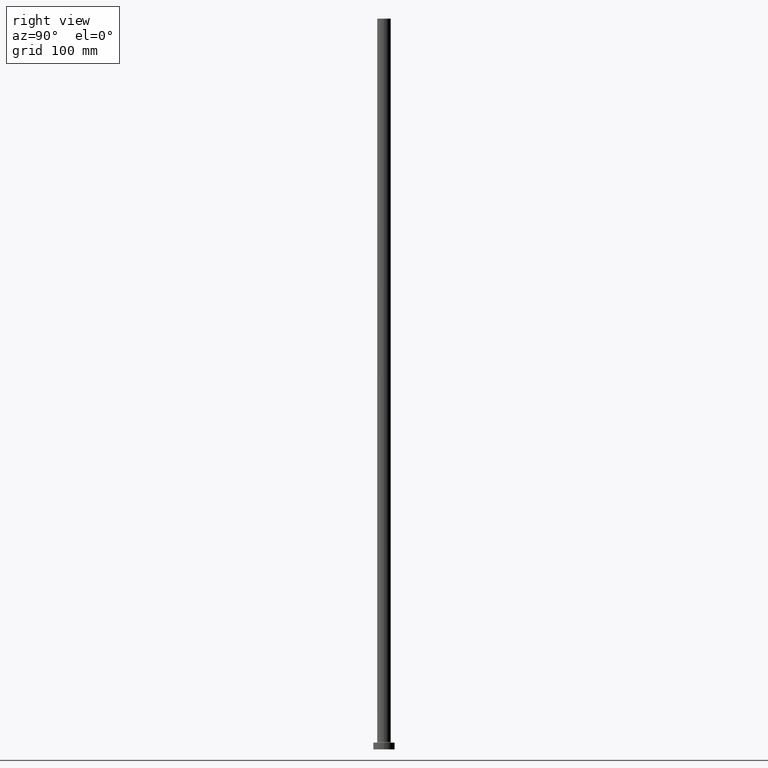
[diagram: clean part render]
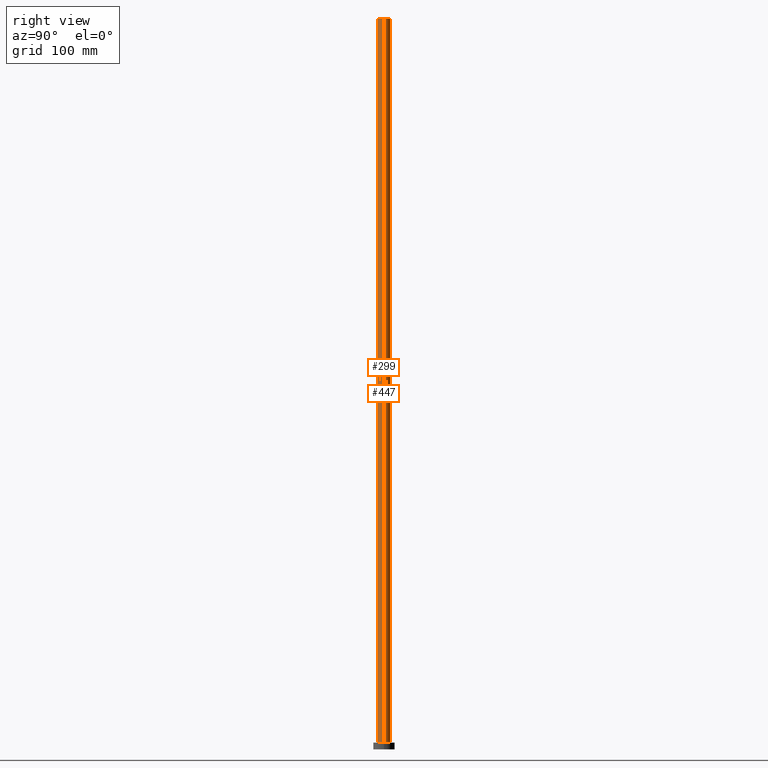
[diagram: same view with one multi-face feature highlighted, each face labeled with its STEP entity id]
A machine part, right view. The highlighted faces form ONE feature: a constant-radius fillet chain: 2 tangent blend faces with common blend radius 7 mm. The faces share edges in the B-rep.
Their STEP definitions:
[1] entity #447 (Cylinder):
#21 = ORIENTED_EDGE ( 'NONE', *, *, #398, .T. ) ;
#26 = VECTOR ( 'NONE', #310, 1000.000000000000000 ) ;
#32 = LINE ( 'NONE', #233, #26 ) ;
#56 = VERTEX_POINT ( 'NONE', #185 ) ;
#69 = CYLINDRICAL_SURFACE ( 'NONE', #399, 7.000000000000000888 ) ;
#104 = CARTESIAN_POINT ( 'NONE',  ( -7.000000000000000888, 0.000000000000000000, 750.0000000000000000 ) ) ;
#110 = FACE_OUTER_BOUND ( 'NONE', #147, .T. ) ;
#127 = CIRCLE ( 'NONE', #217, 7.000000000000000888 ) ;
#147 = EDGE_LOOP ( 'NONE', ( #431, #230, #21, #377 ) ) ;
#185 = CARTESIAN_POINT ( 'NONE',  ( -7.000000000000000888, 0.000000000000000000, 7.700000000000040146 ) ) ;
#201 = CARTESIAN_POINT ( 'NONE',  ( 7.000000000000000888, 8.572527594031472204E-16, 7.700000000000040146 ) ) ;
#204 = DIRECTION ( 'NONE',  ( 0.000000000000000000, 0.000000000000000000, 1.000000000000000000 ) ) ;
#213 = DIRECTION ( 'NONE',  ( -1.000000000000000000, 0.000000000000000000, 0.000000000000000000 ) ) ;
#217 = AXIS2_PLACEMENT_3D ( 'NONE', #340, #204, #312 ) ;
#218 = EDGE_CURVE ( 'NONE', #404, #56, #32, .T. ) ;
#230 = ORIENTED_EDGE ( 'NONE', *, *, #237, .T. ) ;
#233 = CARTESIAN_POINT ( 'NONE',  ( -7.000000000000000888, 0.000000000000000000, 750.0000000000000000 ) ) ;
#237 = EDGE_CURVE ( 'NONE', #429, #262, #418, .T. ) ;
#240 = DIRECTION ( 'NONE',  ( -0.000000000000000000, -0.000000000000000000, -1.000000000000000000 ) ) ;
#244 = AXIS2_PLACEMENT_3D ( 'NONE', #251, #389, #355 ) ;
#247 = CARTESIAN_POINT ( 'NONE',  ( 7.000000000000000888, 8.572527594031472204E-16, 750.0000000000000000 ) ) ;
#251 = CARTESIAN_POINT ( 'NONE',  ( 0.000000000000000000, 0.000000000000000000, 7.700000000000040146 ) ) ;
#262 = VERTEX_POINT ( 'NONE', #201 ) ;
#272 = EDGE_CURVE ( 'NONE', #429, #404, #127, .T. ) ;
#310 = DIRECTION ( 'NONE',  ( -0.000000000000000000, -0.000000000000000000, -1.000000000000000000 ) ) ;
#312 = DIRECTION ( 'NONE',  ( 1.000000000000000000, 0.000000000000000000, 0.000000000000000000 ) ) ;
#317 = CARTESIAN_POINT ( 'NONE',  ( 0.000000000000000000, 0.000000000000000000, 750.0000000000000000 ) ) ;
#340 = CARTESIAN_POINT ( 'NONE',  ( 0.000000000000000000, 0.000000000000000000, 750.0000000000000000 ) ) ;
#355 = DIRECTION ( 'NONE',  ( 1.000000000000000000, 0.000000000000000000, 0.000000000000000000 ) ) ;
#377 = ORIENTED_EDGE ( 'NONE', *, *, #218, .F. ) ;
#389 = DIRECTION ( 'NONE',  ( 0.000000000000000000, 0.000000000000000000, 1.000000000000000000 ) ) ;
#398 = EDGE_CURVE ( 'NONE', #262, #56, #449, .T. ) ;
#399 = AXIS2_PLACEMENT_3D ( 'NONE', #317, #460, #213 ) ;
#404 = VERTEX_POINT ( 'NONE', #104 ) ;
#416 = VECTOR ( 'NONE', #240, 1000.000000000000000 ) ;
#418 = LINE ( 'NONE', #453, #416 ) ;
#429 = VERTEX_POINT ( 'NONE', #247 ) ;
#431 = ORIENTED_EDGE ( 'NONE', *, *, #272, .F. ) ;
#447 = ADVANCED_FACE ( 'NONE', ( #110 ), #69, .T. ) ;
#449 = CIRCLE ( 'NONE', #244, 7.000000000000000888 ) ;
#453 = CARTESIAN_POINT ( 'NONE',  ( 7.000000000000000888, 8.572527594031472204E-16, 750.0000000000000000 ) ) ;
#460 = DIRECTION ( 'NONE',  ( -0.000000000000000000, -0.000000000000000000, -1.000000000000000000 ) ) ;
[2] entity #299 (Cylinder):
#14 = DIRECTION ( 'NONE',  ( 0.000000000000000000, 0.000000000000000000, 1.000000000000000000 ) ) ;
#25 = DIRECTION ( 'NONE',  ( 1.000000000000000000, 0.000000000000000000, 0.000000000000000000 ) ) ;
#26 = VECTOR ( 'NONE', #310, 1000.000000000000000 ) ;
#30 = DIRECTION ( 'NONE',  ( 1.000000000000000000, 0.000000000000000000, 0.000000000000000000 ) ) ;
#32 = LINE ( 'NONE', #233, #26 ) ;
#38 = ORIENTED_EDGE ( 'NONE', *, *, #170, .T. ) ;
#56 = VERTEX_POINT ( 'NONE', #185 ) ;
#60 = CARTESIAN_POINT ( 'NONE',  ( 0.000000000000000000, 0.000000000000000000, 750.0000000000000000 ) ) ;
#74 = AXIS2_PLACEMENT_3D ( 'NONE', #128, #451, #411 ) ;
#83 = ORIENTED_EDGE ( 'NONE', *, *, #237, .F. ) ;
#104 = CARTESIAN_POINT ( 'NONE',  ( -7.000000000000000888, 0.000000000000000000, 750.0000000000000000 ) ) ;
#106 = AXIS2_PLACEMENT_3D ( 'NONE', #191, #14, #25 ) ;
#122 = ORIENTED_EDGE ( 'NONE', *, *, #321, .F. ) ;
#128 = CARTESIAN_POINT ( 'NONE',  ( 0.000000000000000000, 0.000000000000000000, 750.0000000000000000 ) ) ;
#170 = EDGE_CURVE ( 'NONE', #56, #262, #356, .T. ) ;
#185 = CARTESIAN_POINT ( 'NONE',  ( -7.000000000000000888, 0.000000000000000000, 7.700000000000040146 ) ) ;
#191 = CARTESIAN_POINT ( 'NONE',  ( 0.000000000000000000, 0.000000000000000000, 7.700000000000040146 ) ) ;
#201 = CARTESIAN_POINT ( 'NONE',  ( 7.000000000000000888, 8.572527594031472204E-16, 7.700000000000040146 ) ) ;
#209 = AXIS2_PLACEMENT_3D ( 'NONE', #60, #345, #30 ) ;
#218 = EDGE_CURVE ( 'NONE', #404, #56, #32, .T. ) ;
#233 = CARTESIAN_POINT ( 'NONE',  ( -7.000000000000000888, 0.000000000000000000, 750.0000000000000000 ) ) ;
#237 = EDGE_CURVE ( 'NONE', #429, #262, #418, .T. ) ;
#240 = DIRECTION ( 'NONE',  ( -0.000000000000000000, -0.000000000000000000, -1.000000000000000000 ) ) ;
#247 = CARTESIAN_POINT ( 'NONE',  ( 7.000000000000000888, 8.572527594031472204E-16, 750.0000000000000000 ) ) ;
#262 = VERTEX_POINT ( 'NONE', #201 ) ;
#279 = ORIENTED_EDGE ( 'NONE', *, *, #218, .T. ) ;
#299 = ADVANCED_FACE ( 'NONE', ( #305 ), #448, .T. ) ;
#305 = FACE_OUTER_BOUND ( 'NONE', #333, .T. ) ;
#307 = CIRCLE ( 'NONE', #209, 7.000000000000000888 ) ;
#310 = DIRECTION ( 'NONE',  ( -0.000000000000000000, -0.000000000000000000, -1.000000000000000000 ) ) ;
#321 = EDGE_CURVE ( 'NONE', #404, #429, #307, .T. ) ;
#333 = EDGE_LOOP ( 'NONE', ( #83, #122, #279, #38 ) ) ;
#345 = DIRECTION ( 'NONE',  ( 0.000000000000000000, 0.000000000000000000, 1.000000000000000000 ) ) ;
#356 = CIRCLE ( 'NONE', #106, 7.000000000000000888 ) ;
#404 = VERTEX_POINT ( 'NONE', #104 ) ;
#411 = DIRECTION ( 'NONE',  ( -1.000000000000000000, 0.000000000000000000, 0.000000000000000000 ) ) ;
#416 = VECTOR ( 'NONE', #240, 1000.000000000000000 ) ;
#418 = LINE ( 'NONE', #453, #416 ) ;
#429 = VERTEX_POINT ( 'NONE', #247 ) ;
#448 = CYLINDRICAL_SURFACE ( 'NONE', #74, 7.000000000000000888 ) ;
#451 = DIRECTION ( 'NONE',  ( -0.000000000000000000, -0.000000000000000000, -1.000000000000000000 ) ) ;
#453 = CARTESIAN_POINT ( 'NONE',  ( 7.000000000000000888, 8.572527594031472204E-16, 750.0000000000000000 ) ) ;